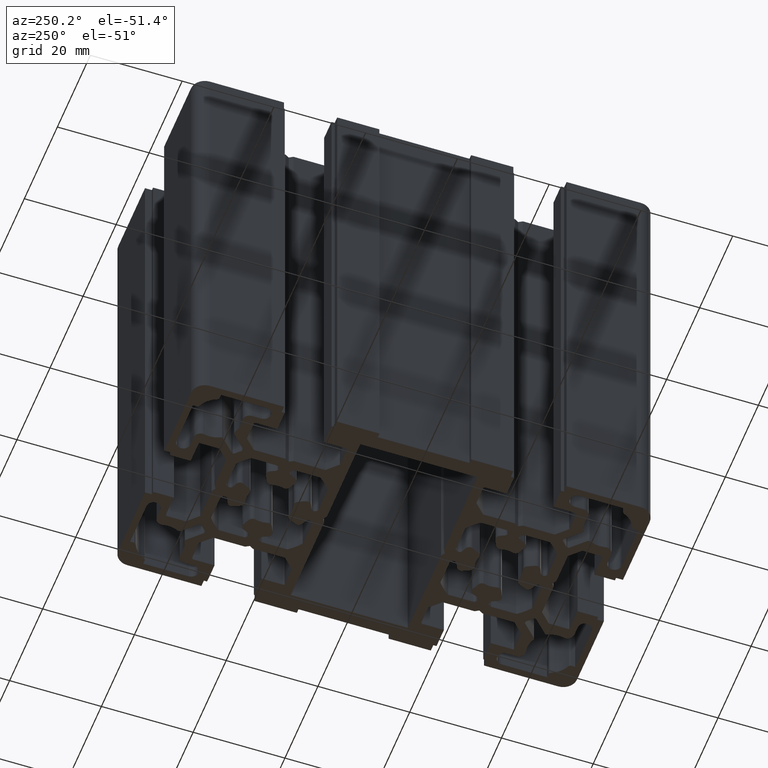
[diagram: clean part render]
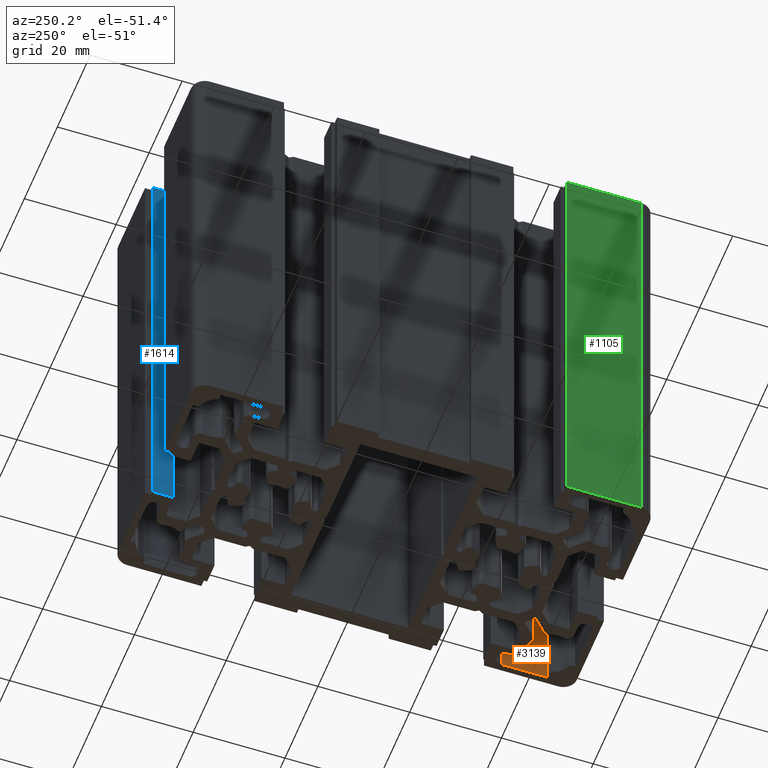
[diagram: same view with three faces highlighted in distinct colors, each labeled with its STEP entity id]
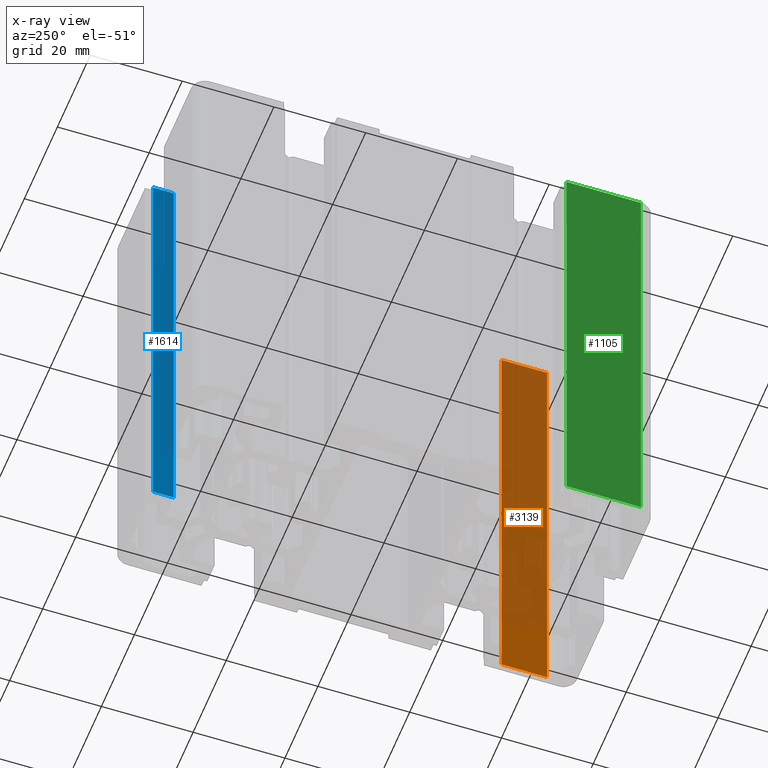
[diagram: x-ray of the same camera — body ghosted, the three highlighted faces saturated]
A machine part, auxiliary view with three faces highlighted in distinct colors.
The next image is the same camera in x-ray (body ghosted, the three faces saturated) — at least one of them is partly hidden behind the body in this view.
Their STEP definitions:

[orange] entity #3139 — the highlighted planar face has unit normal (-1, -0, 0).
#304 = VERTEX_POINT ( 'NONE', #5278 ) ;
#305 = VERTEX_POINT ( 'NONE', #5274 ) ;
#310 = EDGE_CURVE ( 'NONE', #305, #304, #5328, .T. ) ;
#3138 = ORIENTED_EDGE ( 'NONE', *, *, #3159, .F. ) ;
#3139 = ADVANCED_FACE ( 'NONE', ( #9292 ), #9287, .T. ) ;
#3140 = ORIENTED_EDGE ( 'NONE', *, *, #4110, .T. ) ;
#3141 = ORIENTED_EDGE ( 'NONE', *, *, #310, .F. ) ;
#3143 = EDGE_CURVE ( 'NONE', #4102, #304, #8823, .T. ) ;
#3144 = ORIENTED_EDGE ( 'NONE', *, *, #3143, .T. ) ;
#3151 = EDGE_LOOP ( 'NONE', ( #3141, #3138, #3140, #3144 ) ) ;
#3159 = EDGE_CURVE ( 'NONE', #4105, #305, #9602, .T. ) ;
#4102 = VERTEX_POINT ( 'NONE', #11228 ) ;
#4105 = VERTEX_POINT ( 'NONE', #11225 ) ;
#4110 = EDGE_CURVE ( 'NONE', #4105, #4102, #11211, .T. ) ;
#5274 = CARTESIAN_POINT ( 'NONE',  ( 23.50000230031664800, -43.99999715487138700, 0.0000000000000000000 ) ) ;
#5278 = CARTESIAN_POINT ( 'NONE',  ( 23.50000110173050100, -34.09999715487145300, 0.0000000000000000000 ) ) ;
#5324 = DIRECTION ( 'NONE',  ( -1.210693077777634300E-007, 0.9999999999999925600, -0.0000000000000000000 ) ) ;
#5325 = VECTOR ( 'NONE', #5324, 1000.000000000000100 ) ;
#5327 = CARTESIAN_POINT ( 'NONE',  ( 23.50000110173050100, -34.09999715487145300, 0.0000000000000000000 ) ) ;
#5328 = LINE ( 'NONE', #5327, #5325 ) ;
#8038 = CARTESIAN_POINT ( 'NONE',  ( 23.50000110173050100, -34.09999715487145300, 100.0000000000000000 ) ) ;
#8609 = DIRECTION ( 'NONE',  ( -0.9999999999999926700, -1.210693077777634500E-007, 0.0000000000000000000 ) ) ;
#8610 = DIRECTION ( 'NONE',  ( 1.210693077777634300E-007, -0.9999999999999925600, 0.0000000000000000000 ) ) ;
#8815 = DIRECTION ( 'NONE',  ( -0.0000000000000000000, -0.0000000000000000000, -1.000000000000000000 ) ) ;
#8816 = VECTOR ( 'NONE', #8815, 1000.000000000000000 ) ;
#8823 = LINE ( 'NONE', #8843, #8816 ) ;
#8843 = CARTESIAN_POINT ( 'NONE',  ( 23.50000110173050100, -34.09999715487145300, 100.0000000000000000 ) ) ;
#9287 = PLANE ( 'NONE',  #9308 ) ;
#9292 = FACE_OUTER_BOUND ( 'NONE', #3151, .T. ) ;
#9308 = AXIS2_PLACEMENT_3D ( 'NONE', #8038, #8609, #8610 ) ;
#9599 = DIRECTION ( 'NONE',  ( -0.0000000000000000000, -0.0000000000000000000, -1.000000000000000000 ) ) ;
#9600 = VECTOR ( 'NONE', #9599, 1000.000000000000000 ) ;
#9601 = CARTESIAN_POINT ( 'NONE',  ( 23.50000230031664800, -43.99999715487138700, 100.0000000000000000 ) ) ;
#9602 = LINE ( 'NONE', #9601, #9600 ) ;
#11211 = LINE ( 'NONE', #11259, #11258 ) ;
#11225 = CARTESIAN_POINT ( 'NONE',  ( 23.50000230031664800, -43.99999715487138700, 100.0000000000000000 ) ) ;
#11228 = CARTESIAN_POINT ( 'NONE',  ( 23.50000110173050100, -34.09999715487145300, 100.0000000000000000 ) ) ;
#11257 = DIRECTION ( 'NONE',  ( -1.210693077777634300E-007, 0.9999999999999925600, -0.0000000000000000000 ) ) ;
#11258 = VECTOR ( 'NONE', #11257, 1000.000000000000100 ) ;
#11259 = CARTESIAN_POINT ( 'NONE',  ( 23.50000110173050100, -34.09999715487145300, 100.0000000000000000 ) ) ;

[blue] entity #1614 — the highlighted planar face has unit normal (1, 0, 0).
#15 = VERTEX_POINT ( 'NONE', #4720 ) ;
#42 = EDGE_CURVE ( 'NONE', #50, #15, #4830, .T. ) ;
#50 = VERTEX_POINT ( 'NONE', #4814 ) ;
#1566 = EDGE_CURVE ( 'NONE', #4374, #50, #7356, .T. ) ;
#1571 = EDGE_LOOP ( 'NONE', ( #1616, #1613, #1619, #1618 ) ) ;
#1612 = EDGE_CURVE ( 'NONE', #4426, #15, #7413, .T. ) ;
#1613 = ORIENTED_EDGE ( 'NONE', *, *, #1612, .F. ) ;
#1614 = ADVANCED_FACE ( 'NONE', ( #7419 ), #7434, .F. ) ;
#1616 = ORIENTED_EDGE ( 'NONE', *, *, #42, .T. ) ;
#1618 = ORIENTED_EDGE ( 'NONE', *, *, #1566, .T. ) ;
#1619 = ORIENTED_EDGE ( 'NONE', *, *, #4427, .F. ) ;
#4374 = VERTEX_POINT ( 'NONE', #11732 ) ;
#4426 = VERTEX_POINT ( 'NONE', #11815 ) ;
#4427 = EDGE_CURVE ( 'NONE', #4374, #4426, #11804, .T. ) ;
#4720 = CARTESIAN_POINT ( 'NONE',  ( 5.099999999999994300, 44.00000000000022000, 0.0000000000000000000 ) ) ;
#4814 = CARTESIAN_POINT ( 'NONE',  ( 5.099999999999994300, 48.50000000000022000, 0.0000000000000000000 ) ) ;
#4827 = DIRECTION ( 'NONE',  ( -0.0000000000000000000, -1.000000000000000000, -0.0000000000000000000 ) ) ;
#4828 = VECTOR ( 'NONE', #4827, 1000.000000000000000 ) ;
#4829 = CARTESIAN_POINT ( 'NONE',  ( 5.099999999999994300, 44.00000000000022000, 0.0000000000000000000 ) ) ;
#4830 = LINE ( 'NONE', #4829, #4828 ) ;
#7353 = DIRECTION ( 'NONE',  ( -0.0000000000000000000, -0.0000000000000000000, -1.000000000000000000 ) ) ;
#7354 = VECTOR ( 'NONE', #7353, 1000.000000000000000 ) ;
#7355 = CARTESIAN_POINT ( 'NONE',  ( 5.099999999999994300, 48.50000000000022000, 100.0000000000000000 ) ) ;
#7356 = LINE ( 'NONE', #7355, #7354 ) ;
#7404 = DIRECTION ( 'NONE',  ( -0.0000000000000000000, -0.0000000000000000000, -1.000000000000000000 ) ) ;
#7405 = VECTOR ( 'NONE', #7404, 1000.000000000000000 ) ;
#7406 = CARTESIAN_POINT ( 'NONE',  ( 5.099999999999994300, 44.00000000000022000, 100.0000000000000000 ) ) ;
#7413 = LINE ( 'NONE', #7406, #7405 ) ;
#7414 = CARTESIAN_POINT ( 'NONE',  ( 5.099999999999994300, 44.00000000000022000, 100.0000000000000000 ) ) ;
#7419 = FACE_OUTER_BOUND ( 'NONE', #1571, .T. ) ;
#7434 = PLANE ( 'NONE',  #7463 ) ;
#7459 = DIRECTION ( 'NONE',  ( 0.0000000000000000000, 0.0000000000000000000, -1.000000000000000000 ) ) ;
#7460 = DIRECTION ( 'NONE',  ( 1.000000000000000000, 0.0000000000000000000, 0.0000000000000000000 ) ) ;
#7463 = AXIS2_PLACEMENT_3D ( 'NONE', #7414, #7460, #7459 ) ;
#11732 = CARTESIAN_POINT ( 'NONE',  ( 5.099999999999994300, 48.50000000000022000, 100.0000000000000000 ) ) ;
#11801 = DIRECTION ( 'NONE',  ( -0.0000000000000000000, -1.000000000000000000, -0.0000000000000000000 ) ) ;
#11802 = VECTOR ( 'NONE', #11801, 1000.000000000000000 ) ;
#11803 = CARTESIAN_POINT ( 'NONE',  ( 5.099999999999994300, 44.00000000000022000, 100.0000000000000000 ) ) ;
#11804 = LINE ( 'NONE', #11803, #11802 ) ;
#11815 = CARTESIAN_POINT ( 'NONE',  ( 5.099999999999994300, 44.00000000000022000, 100.0000000000000000 ) ) ;

[green] entity #1105 — the highlighted planar face has unit normal (1, 0, -0).
#206 = VERTEX_POINT ( 'NONE', #5109 ) ;
#458 = VERTEX_POINT ( 'NONE', #5578 ) ;
#467 = EDGE_CURVE ( 'NONE', #458, #206, #5621, .T. ) ;
#1071 = EDGE_LOOP ( 'NONE', ( #1118, #1127, #1108, #1111 ) ) ;
#1105 = ADVANCED_FACE ( 'NONE', ( #6651 ), #6663, .F. ) ;
#1108 = ORIENTED_EDGE ( 'NONE', *, *, #3291, .F. ) ;
#1111 = ORIENTED_EDGE ( 'NONE', *, *, #1119, .T. ) ;
#1118 = ORIENTED_EDGE ( 'NONE', *, *, #467, .T. ) ;
#1119 = EDGE_CURVE ( 'NONE', #3293, #458, #6642, .T. ) ;
#1126 = EDGE_CURVE ( 'NONE', #3290, #206, #6670, .T. ) ;
#1127 = ORIENTED_EDGE ( 'NONE', *, *, #1126, .F. ) ;
#3290 = VERTEX_POINT ( 'NONE', #9761 ) ;
#3291 = EDGE_CURVE ( 'NONE', #3293, #3290, #9751, .T. ) ;
#3293 = VERTEX_POINT ( 'NONE', #9746 ) ;
#5109 = CARTESIAN_POINT ( 'NONE',  ( -24.99999999999993600, -47.00000000000022000, 0.0000000000000000000 ) ) ;
#5578 = CARTESIAN_POINT ( 'NONE',  ( -25.00000000000000000, -30.79999923706078800, 0.0000000000000000000 ) ) ;
#5617 = DIRECTION ( 'NONE',  ( 3.854940876177694500E-015, -1.000000000000000000, 0.0000000000000000000 ) ) ;
#5618 = VECTOR ( 'NONE', #5617, 1000.000000000000000 ) ;
#5619 = CARTESIAN_POINT ( 'NONE',  ( -25.00000000000000000, -30.79999923706078800, 0.0000000000000000000 ) ) ;
#5621 = LINE ( 'NONE', #5619, #5618 ) ;
#6613 = AXIS2_PLACEMENT_3D ( 'NONE', #6695, #6694, #6693 ) ;
#6642 = LINE ( 'NONE', #6675, #6674 ) ;
#6651 = FACE_OUTER_BOUND ( 'NONE', #1071, .T. ) ;
#6663 = PLANE ( 'NONE',  #6613 ) ;
#6668 = VECTOR ( 'NONE', #6728, 1000.000000000000000 ) ;
#6669 = CARTESIAN_POINT ( 'NONE',  ( -24.99999999999993600, -47.00000000000022000, 100.0000000000000000 ) ) ;
#6670 = LINE ( 'NONE', #6669, #6668 ) ;
#6673 = DIRECTION ( 'NONE',  ( -0.0000000000000000000, -0.0000000000000000000, -1.000000000000000000 ) ) ;
#6674 = VECTOR ( 'NONE', #6673, 1000.000000000000000 ) ;
#6675 = CARTESIAN_POINT ( 'NONE',  ( -25.00000000000000000, -30.79999923706078800, 100.0000000000000000 ) ) ;
#6693 = DIRECTION ( 'NONE',  ( -3.854940876177694500E-015, 1.000000000000000000, 0.0000000000000000000 ) ) ;
#6694 = DIRECTION ( 'NONE',  ( 1.000000000000000000, 3.854940876177694500E-015, -0.0000000000000000000 ) ) ;
#6695 = CARTESIAN_POINT ( 'NONE',  ( -25.00000000000000000, -30.79999923706078800, 100.0000000000000000 ) ) ;
#6728 = DIRECTION ( 'NONE',  ( -0.0000000000000000000, -0.0000000000000000000, -1.000000000000000000 ) ) ;
#9746 = CARTESIAN_POINT ( 'NONE',  ( -25.00000000000000000, -30.79999923706078800, 100.0000000000000000 ) ) ;
#9748 = DIRECTION ( 'NONE',  ( 3.854940876177694500E-015, -1.000000000000000000, 0.0000000000000000000 ) ) ;
#9749 = VECTOR ( 'NONE', #9748, 1000.000000000000000 ) ;
#9750 = CARTESIAN_POINT ( 'NONE',  ( -25.00000000000000000, -30.79999923706078800, 100.0000000000000000 ) ) ;
#9751 = LINE ( 'NONE', #9750, #9749 ) ;
#9761 = CARTESIAN_POINT ( 'NONE',  ( -24.99999999999993600, -47.00000000000022000, 100.0000000000000000 ) ) ;